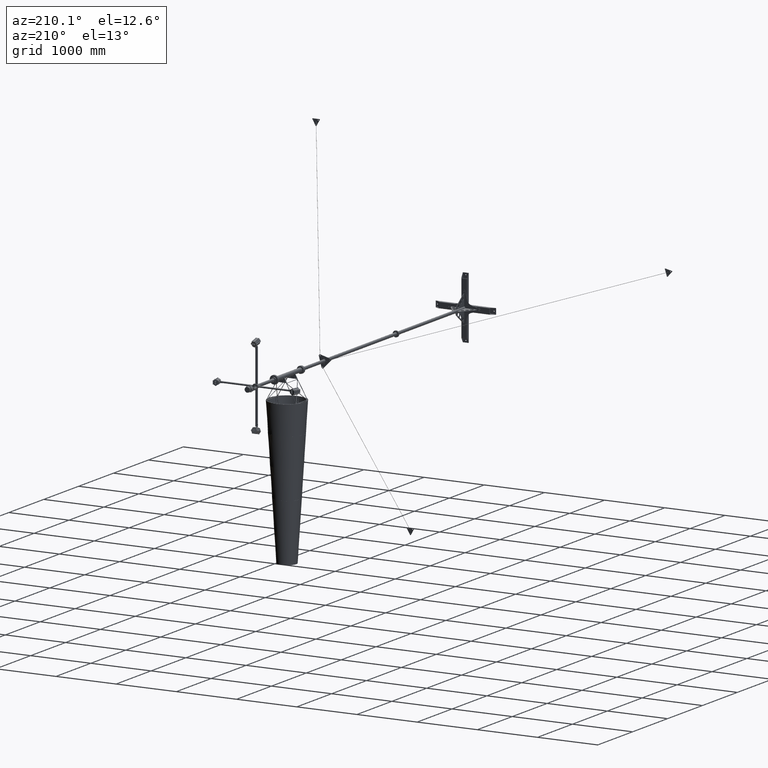
[diagram: clean part render]
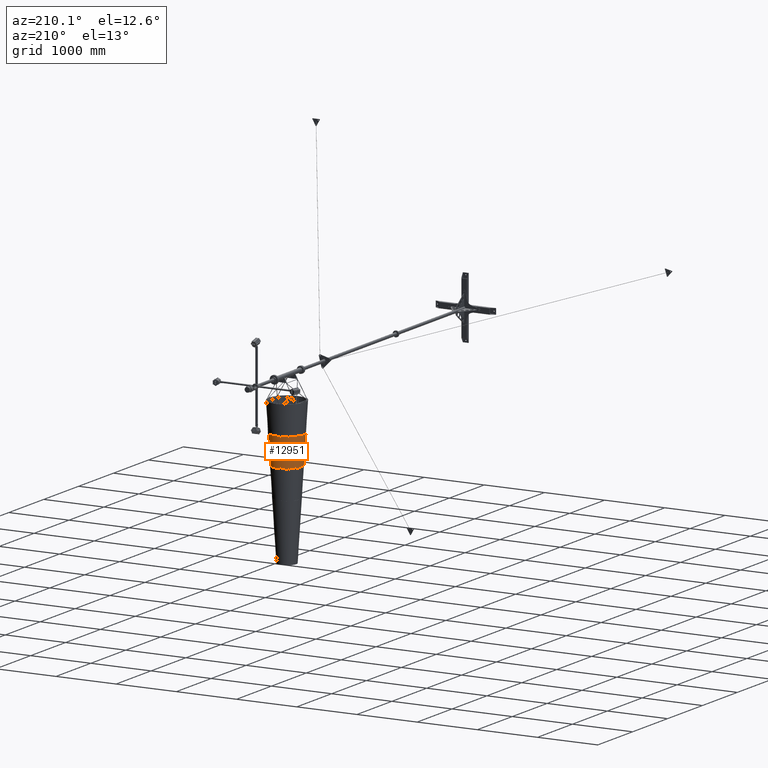
[diagram: same view with one face highlighted and labeled with its STEP entity id]
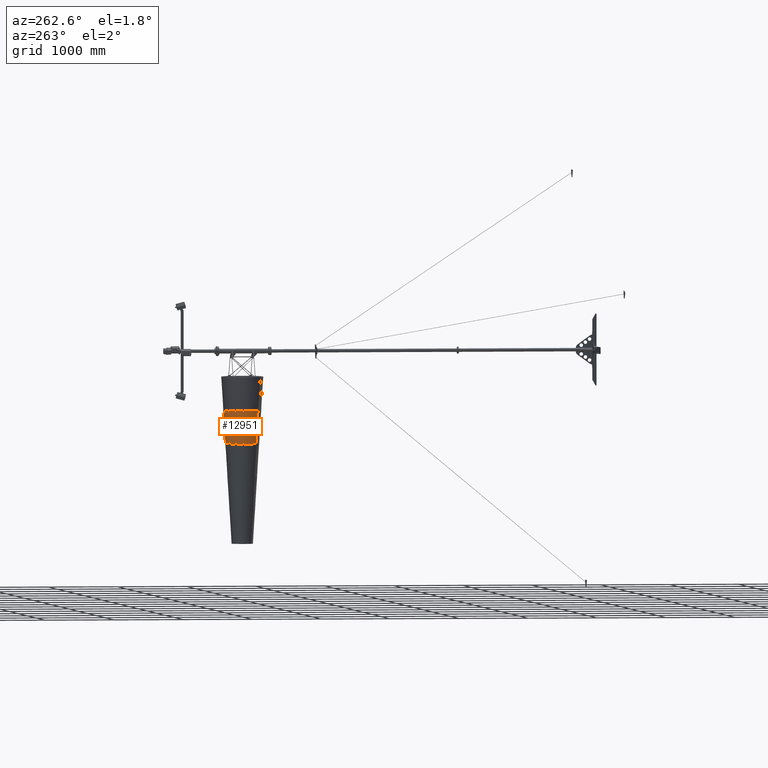
[diagram: same view with one face highlighted and labeled with its STEP entity id]
A machine part, auxiliary view. The second image highlights one B-rep face of the part: STEP entity #12951.
A second angle (auxiliary view) of the same face is appended — the face is thin or edge-on in the first view.
In plain terms, the highlighted conical surface has half-angle 3.576 deg.
Its self-contained STEP definition (entity closure, byte-faithful):
#272 = LINE ( 'NONE', #8172, #30741 ) ;
#826 = DIRECTION ( 'NONE',  ( 0.06237828615518002700, 0.9980525784828886400, 1.134794633648328200E-016 ) ) ;
#836 = LINE ( 'NONE', #33207, #23426 ) ;
#3194 = VERTEX_POINT ( 'NONE', #22246 ) ;
#3437 = CIRCLE ( 'NONE', #24752, 275.0019512213675100 ) ;
#3668 = CARTESIAN_POINT ( 'NONE',  ( 4.440892098500626200E-013, -959.9999999999994300, 0.0000000000000000000 ) ) ;
#4930 = AXIS2_PLACEMENT_3D ( 'NONE', #3668, #24313, #6642 ) ;
#6485 = ORIENTED_EDGE ( 'NONE', *, *, #12976, .T. ) ;
#6642 = DIRECTION ( 'NONE',  ( -1.000000000000000000, 4.531486459967139500E-016, -2.220446049250313600E-016 ) ) ;
#8172 = CARTESIAN_POINT ( 'NONE',  ( -275.0019512213675100, -480.0000000000000600, -6.106269961256127900E-014 ) ) ;
#9334 = DIRECTION ( 'NONE',  ( -4.841167131310451100E-016, 1.000000000000000000, 9.216905661604722400E-017 ) ) ;
#10339 = EDGE_CURVE ( 'NONE', #3194, #14766, #36567, .T. ) ;
#10398 = DIRECTION ( 'NONE',  ( -4.841167131310451100E-016, 1.000000000000000000, 9.216905661604722400E-017 ) ) ;
#12951 = ADVANCED_FACE ( 'NONE', ( #28118 ), #36311, .T. ) ;
#12976 = EDGE_CURVE ( 'NONE', #14766, #29530, #836, .T. ) ;
#14766 = VERTEX_POINT ( 'NONE', #14786 ) ;
#14786 = CARTESIAN_POINT ( 'NONE',  ( 245.0019512213680200, -959.9999999999993200, 6.745251268436594900E-014 ) ) ;
#15379 = AXIS2_PLACEMENT_3D ( 'NONE', #30123, #9334, #27292 ) ;
#22246 = CARTESIAN_POINT ( 'NONE',  ( -245.0019512213670800, -959.9999999999993200, -5.440136146481035200E-014 ) ) ;
#23426 = VECTOR ( 'NONE', #826, 999.9999999999998900 ) ;
#23737 = ORIENTED_EDGE ( 'NONE', *, *, #10339, .T. ) ;
#23987 = EDGE_CURVE ( 'NONE', #3194, #35428, #272, .T. ) ;
#24313 = DIRECTION ( 'NONE',  ( -4.841167131310451100E-016, 1.000000000000000000, 9.216905661604722400E-017 ) ) ;
#24752 = AXIS2_PLACEMENT_3D ( 'NONE', #28123, #10398, #31049 ) ;
#25003 = ORIENTED_EDGE ( 'NONE', *, *, #23987, .F. ) ;
#27292 = DIRECTION ( 'NONE',  ( -1.000000000000000000, 2.018572995017521800E-016, -2.220446049250313100E-016 ) ) ;
#28118 = FACE_OUTER_BOUND ( 'NONE', #33811, .T. ) ;
#28123 = CARTESIAN_POINT ( 'NONE',  ( 0.0000000000000000000, -480.0000000000001100, 0.0000000000000000000 ) ) ;
#28602 = CARTESIAN_POINT ( 'NONE',  ( -275.0019512213675100, -480.0000000000002300, -6.106269961256129100E-014 ) ) ;
#29530 = VERTEX_POINT ( 'NONE', #36135 ) ;
#29592 = EDGE_CURVE ( 'NONE', #35428, #29530, #3437, .T. ) ;
#30123 = CARTESIAN_POINT ( 'NONE',  ( 0.0000000000000000000, -480.0000000000001100, 0.0000000000000000000 ) ) ;
#30741 = VECTOR ( 'NONE', #34764, 1000.000000000000000 ) ;
#31049 = DIRECTION ( 'NONE',  ( -1.000000000000000000, 2.018572995017521800E-016, -2.220446049250313100E-016 ) ) ;
#33207 = CARTESIAN_POINT ( 'NONE',  ( 275.0019512213675100, -480.0000000000001700, 9.474072554481369300E-014 ) ) ;
#33811 = EDGE_LOOP ( 'NONE', ( #23737, #6485, #35884, #25003 ) ) ;
#34764 = DIRECTION ( 'NONE',  ( -0.06237828615518099100, 0.9980525784828885300, 7.813880270675366900E-017 ) ) ;
#35428 = VERTEX_POINT ( 'NONE', #28602 ) ;
#35884 = ORIENTED_EDGE ( 'NONE', *, *, #29592, .F. ) ;
#36135 = CARTESIAN_POINT ( 'NONE',  ( 275.0019512213675100, -480.0000000000000000, 9.474072554481371800E-014 ) ) ;
#36311 = CONICAL_SURFACE ( 'NONE', #15379, 275.0019512213675100, 0.06241880999595730800 ) ;
#36567 = CIRCLE ( 'NONE', #4930, 245.0019512213675300 ) ;